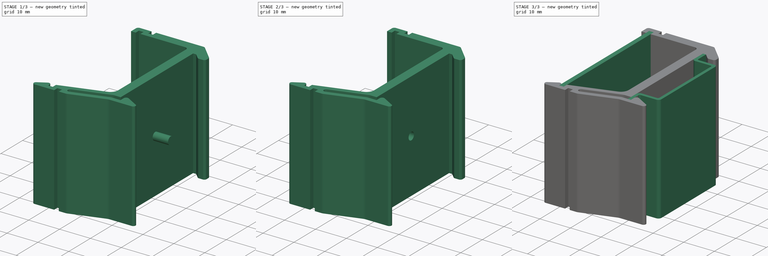
[diagram: build sequence overview — one tinted view per stage of 3, left to right]
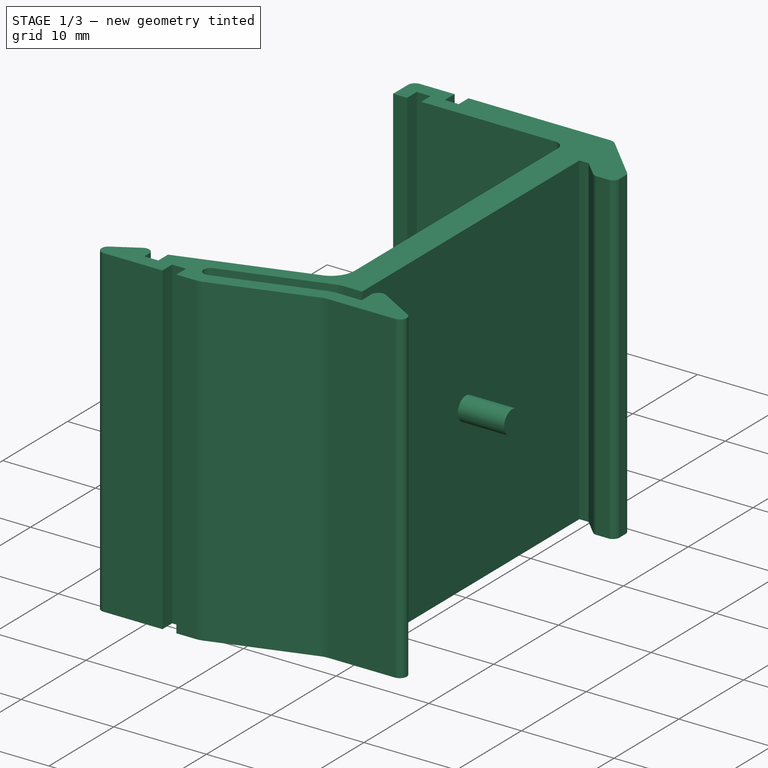
[diagram: stage 1 of 3 — iso view after this stage's code; geometry added in this stage tinted green]
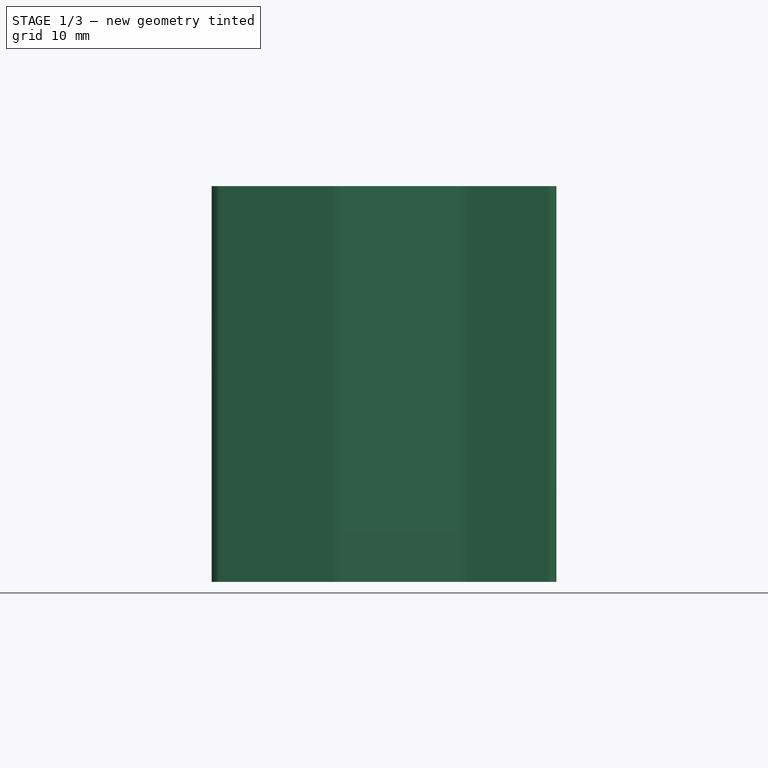
[diagram: stage 1 of 3 — front view after this stage's code; geometry added in this stage tinted green]
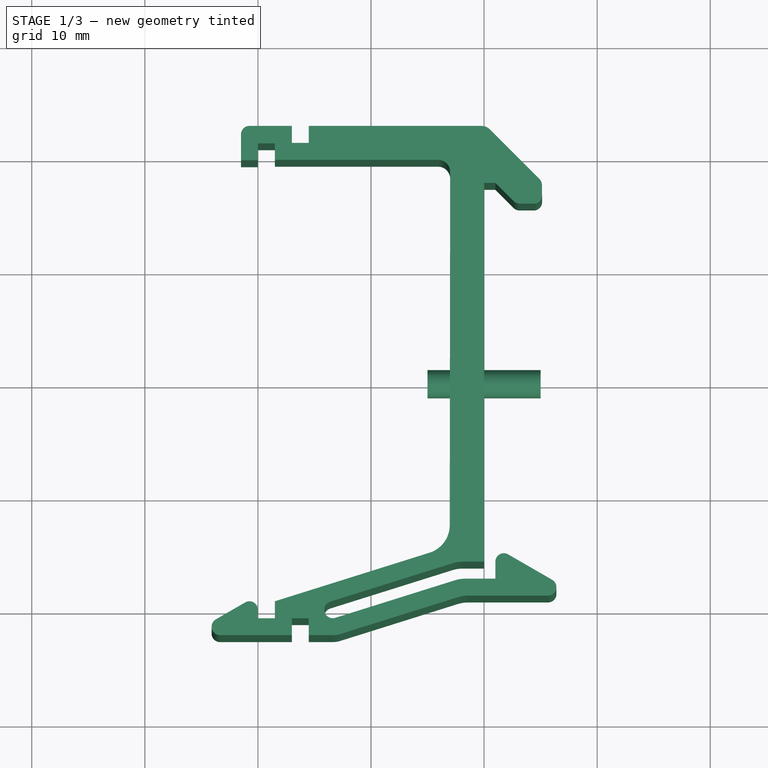
[diagram: stage 1 of 3 — top view after this stage's code; geometry added in this stage tinted green]
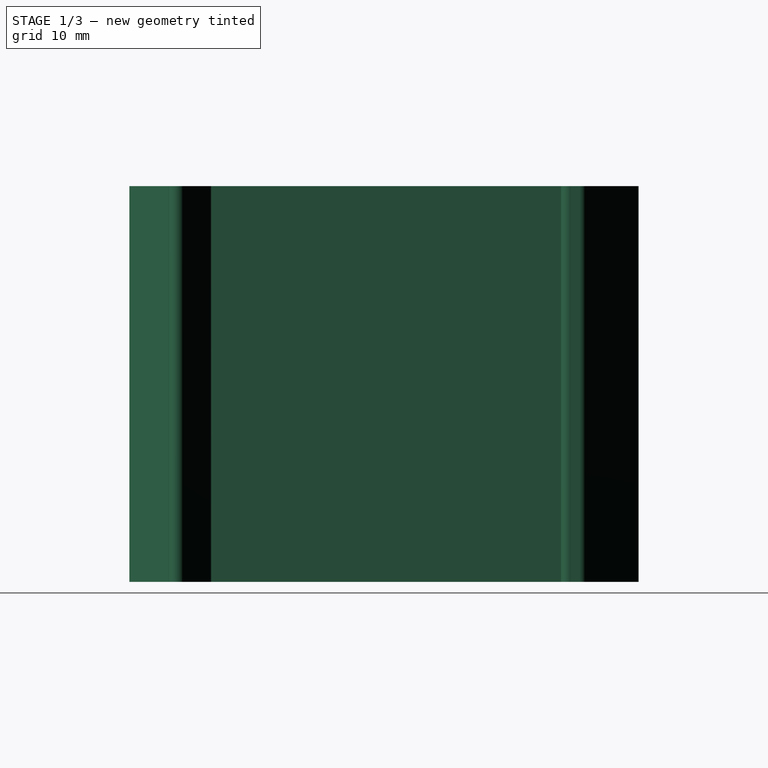
[diagram: stage 1 of 3 — right view after this stage's code; geometry added in this stage tinted green]
FCSTD DOCUMENT
Label: DIN_bracket_double
License: CC-BY 3.0
LicenseURL: http://creativecommons.org/licenses/by/3.0/
objects: Sketcher::SketchObject×2, PartDesign::Pad×2, Part::Box×1, Part::Cylinder×1, Part::Cut×1
note: 9 computed .brp shape members not serialized (recipe doc carries the construction recipe); baked Part::Feature solids carry a one-line shape summary decoded from their .brp

FEATURE [PartDesign::Pad] Pad  label="DIN bracket solid"
  Length = 35
  Length2 = 100
  Placement = pos=(-3,0,0) rot=(0,0,1;0rad)
  Sketch = -> Sketch
  Type = 0
FEATURE [Part::Cylinder] Cylinder  label="bracket hole"
  Angle = 360
  Height = 10
  Placement = pos=(5,0,17.5) rot=(0,-1,0;1.5708rad)
  Radius = 1.25
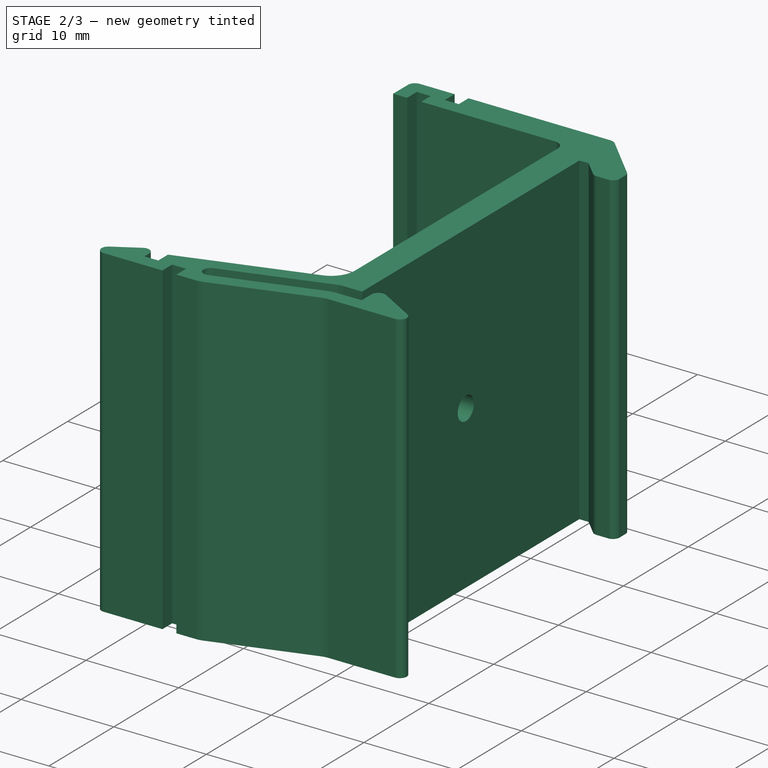
[diagram: stage 2 of 3 — iso view after this stage's code; geometry added in this stage tinted green]
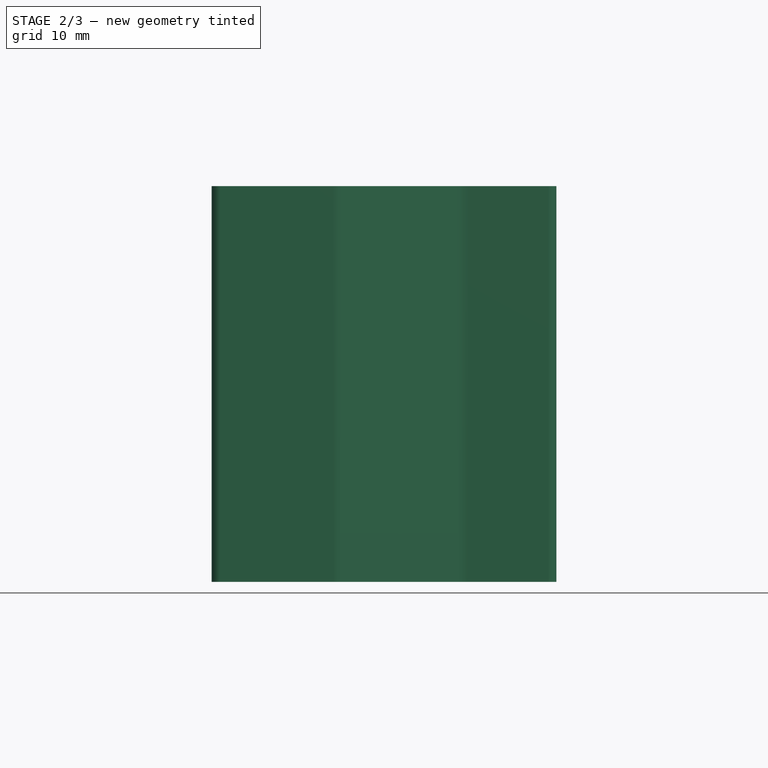
[diagram: stage 2 of 3 — front view after this stage's code; geometry added in this stage tinted green]
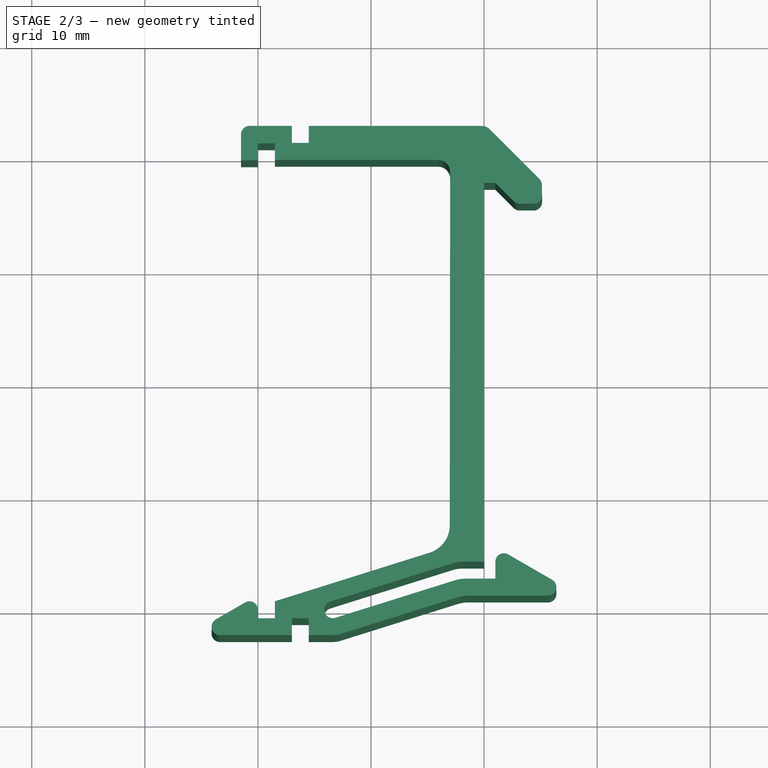
[diagram: stage 2 of 3 — top view after this stage's code; geometry added in this stage tinted green]
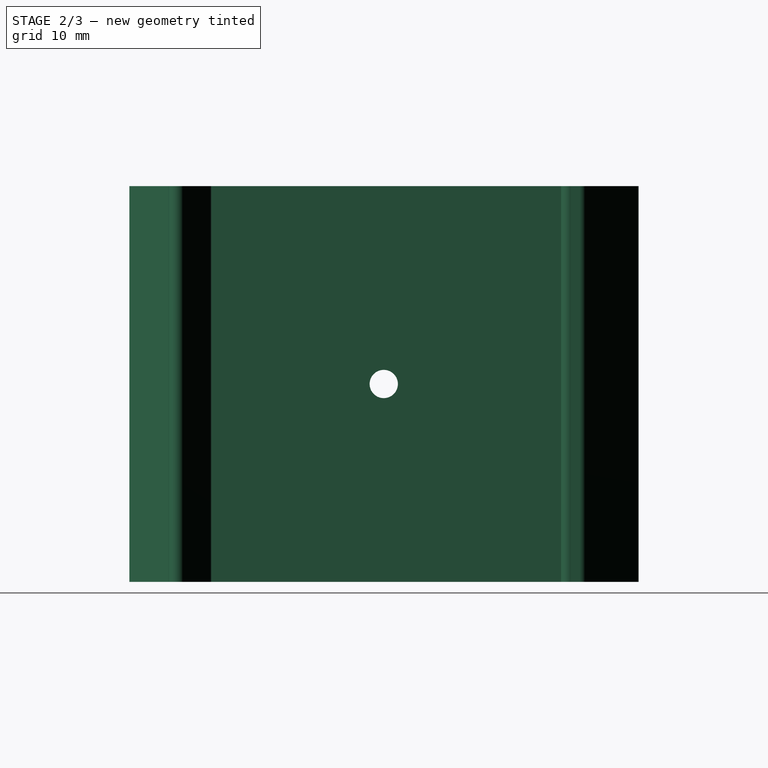
[diagram: stage 2 of 3 — right view after this stage's code; geometry added in this stage tinted green]
FEATURE [Part::Cut] Cut  label="DIN bracket"
  Base = -> Pad
  Tool = -> Cylinder
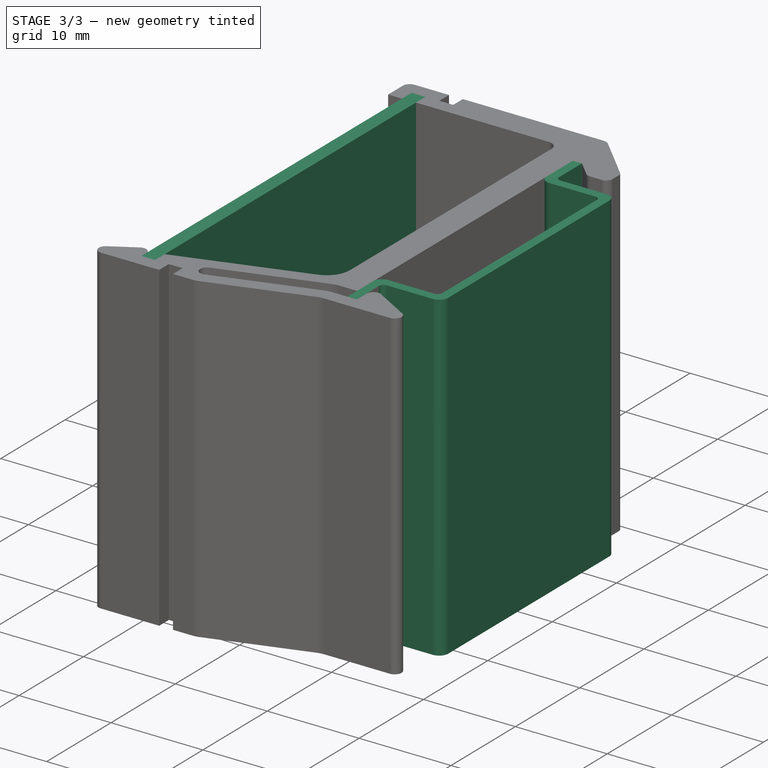
[diagram: stage 3 of 3 — iso view after this stage's code; geometry added in this stage tinted green]
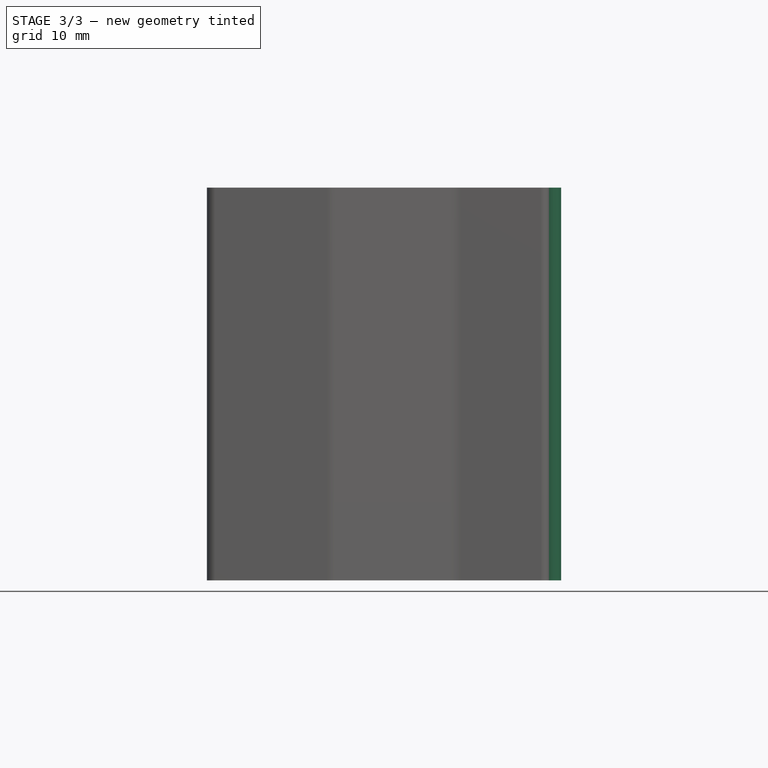
[diagram: stage 3 of 3 — front view after this stage's code; geometry added in this stage tinted green]
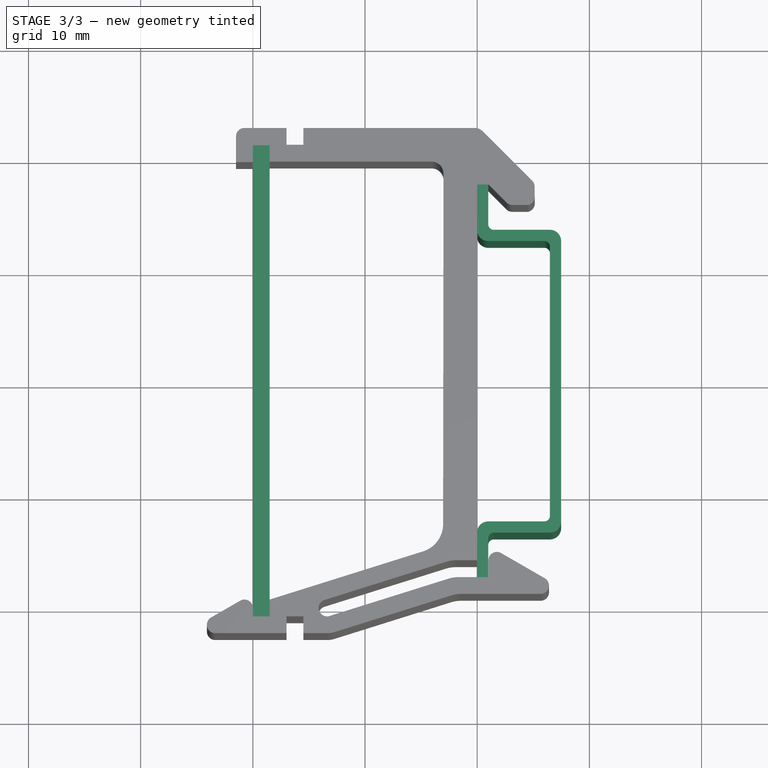
[diagram: stage 3 of 3 — top view after this stage's code; geometry added in this stage tinted green]
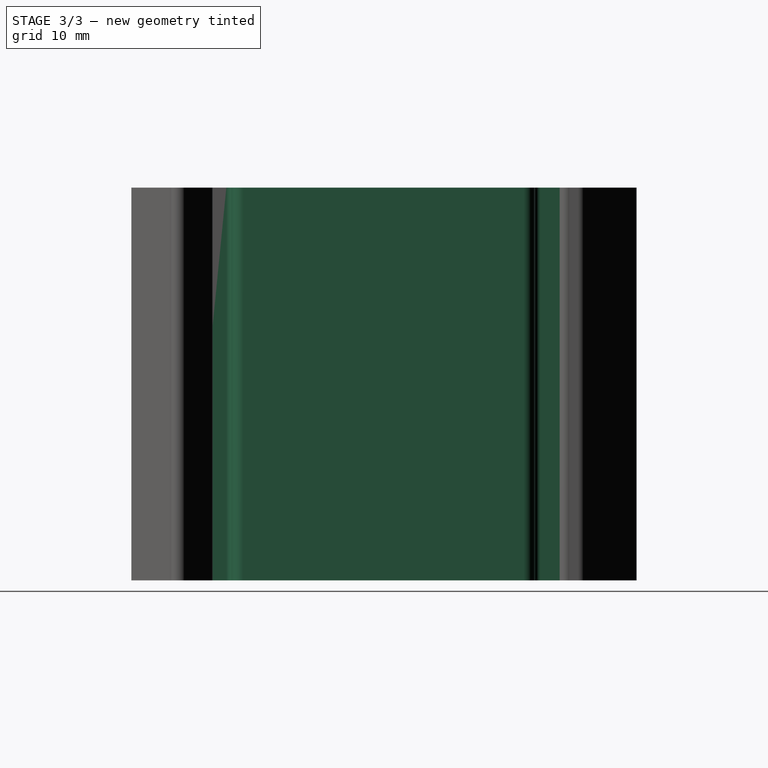
[diagram: stage 3 of 3 — right view after this stage's code; geometry added in this stage tinted green]
FEATURE [Sketcher::SketchObject] Sketch
  Placement = pos=(-3,0,0) rot=(0,0,1;0rad)
  sketch-geometry (52):
    g0: LineSegment StartX=2.77199 StartY=22.5417 StartZ=0 EndX=-12.5 EndY=22.5417 EndZ=0
    g1: LineSegment StartX=-18.5 StartY=21.7917 StartZ=0 EndX=-18.5 EndY=19.5 EndZ=0
    g2: LineSegment StartX=-18.5 StartY=19.5 StartZ=0 EndX=-17 EndY=19.5 EndZ=0
    g3: LineSegment StartX=-17 StartY=19.5 StartZ=0 EndX=-17 EndY=21 EndZ=0
    g4: LineSegment StartX=-17 StartY=21 StartZ=0 EndX=-15.5 EndY=21 EndZ=0
    g5: LineSegment StartX=-15.5 StartY=21 StartZ=0 EndX=-15.5 EndY=19.5417 EndZ=0
    g6: LineSegment StartX=-15.5 StartY=19.5417 StartZ=0 EndX=-1.04706 EndY=19.5417 EndZ=0
    g7: ArcOfCircle CenterX=-1.06574 CenterY=18.4761 CenterZ=0 NormalX=0 NormalY=0 NormalZ=1 Radius=1.06575 StartAngle=6.28199 EndAngle=7.83645
    g8: LineSegment StartX=0 StartY=18.4748 StartZ=0 EndX=-0.0372978 EndY=-12.7672 EndZ=0
    g9: LineSegment StartX=-15.5 StartY=-19.5 StartZ=0 EndX=-15.5 EndY=-21 EndZ=0
    g10: LineSegment StartX=-15.5 StartY=-21 StartZ=0 EndX=-17 EndY=-21 EndZ=0
    g11: LineSegment StartX=-17 StartY=-21 StartZ=0 EndX=-17 EndY=-20.25 EndZ=0
    g12: ArcOfCircle CenterX=-17.75 CenterY=-20.25 CenterZ=0 NormalX=0 NormalY=0 NormalZ=1 Radius=0.75 StartAngle=-3.81e-10 EndAngle=2.0944
    g13: LineSegment StartX=-18.125 StartY=-19.6005 StartZ=0 EndX=-20.7231 EndY=-21.1005 EndZ=0
    g14: ArcOfCircle CenterX=-20.3481 CenterY=-21.75 CenterZ=0 NormalX=0 NormalY=0 NormalZ=1 Radius=0.75 StartAngle=2.0944 EndAngle=4.71239
    g15: LineSegment StartX=-20.3481 StartY=-22.5 StartZ=0 EndX=-14 EndY=-22.5 EndZ=0
    g16: LineSegment StartX=1.57107 StartY=-19 StartZ=0 EndX=8.6469 EndY=-19 EndZ=0
    g17: ArcOfCircle CenterX=8.6469 CenterY=-18.25 CenterZ=0 NormalX=0 NormalY=0 NormalZ=1 Radius=0.75 StartAngle=4.71239 EndAngle=7.33038
    g18: LineSegment StartX=9.0219 StartY=-17.6005 StartZ=0 EndX=5.12479 EndY=-15.3505 EndZ=0
    g19: ArcOfCircle CenterX=4.74979 CenterY=-16 CenterZ=0 NormalX=0 NormalY=0 NormalZ=1 Radius=0.75 StartAngle=1.0472 EndAngle=3.14159
    g20: LineSegment StartX=3.99979 StartY=-17.5 StartZ=0 EndX=1.34107 EndY=-17.5 EndZ=0
    g21: LineSegment StartX=1.11107 StartY=-16 StartZ=0 EndX=2.99979 EndY=-16 EndZ=0
    g22: LineSegment StartX=2.99979 StartY=-16 StartZ=0 EndX=2.99979 EndY=17.5 EndZ=0
    g23: LineSegment StartX=2.99979 StartY=17.5 StartZ=0 EndX=3.99979 EndY=17.5 EndZ=0
    g24: LineSegment StartX=3.99979 StartY=17.5 StartZ=0 EndX=5.55694 EndY=15.9428 EndZ=0
    g25: ArcOfCircle CenterX=6.13336 CenterY=16.4227 CenterZ=0 NormalX=0 NormalY=0 NormalZ=1 Radius=0.75 StartAngle=3.83579 EndAngle=4.71239
    g26: LineSegment StartX=6.13336 StartY=15.6727 StartZ=0 EndX=7.5134 EndY=15.6727 EndZ=0
    g27: ArcOfCircle CenterX=7.37784 CenterY=16.4103 CenterZ=0 NormalX=0 NormalY=0 NormalZ=1 Radius=0.75 StartAngle=4.89412 EndAngle=6.45098
    g28: LineSegment StartX=8.11731 StartY=16.5356 StartZ=0 EndX=8.11731 EndY=17.3145 EndZ=0
    g29: LineSegment StartX=3.99979 StartY=-16 StartZ=0 EndX=3.99979 EndY=-17.5 EndZ=0
    g30: LineSegment StartX=-12.5 StartY=22.5417 StartZ=0 EndX=-12.5 EndY=21.0417 EndZ=0
    g31: LineSegment StartX=-12.5 StartY=21.0417 StartZ=0 EndX=-14 EndY=21.0417 EndZ=0
    g32: LineSegment StartX=-14 StartY=21.0417 StartZ=0 EndX=-14 EndY=22.5417 EndZ=0
    g33: LineSegment StartX=-14 StartY=22.5417 StartZ=0 EndX=-17.75 EndY=22.5417 EndZ=0
    g34: LineSegment StartX=3.50396 StartY=22.2385 StartZ=0 EndX=7.89764 EndY=17.8448 EndZ=0
    g35: ArcOfCircle CenterX=7.36731 CenterY=17.3145 CenterZ=0 NormalX=0 NormalY=0 NormalZ=1 Radius=0.75 StartAngle=0 EndAngle=0.785398
    g36: ArcOfCircle CenterX=2.77199 CenterY=21.5065 CenterZ=0 NormalX=0 NormalY=0 NormalZ=1 Radius=1.03517 StartAngle=0.785398 EndAngle=1.5708
    g37: ArcOfCircle CenterX=-17.75 CenterY=21.7917 CenterZ=0 NormalX=0 NormalY=0 NormalZ=1 Radius=0.75 StartAngle=1.5708 EndAngle=3.14159
    g38: LineSegment StartX=0.672204 StartY=-19.1378 StartZ=0 EndX=-9.70453 EndY=-22.3966 EndZ=0
    g39: LineSegment StartX=-15.5 StartY=-19.5 StartZ=0 EndX=-1.8307 EndY=-15.2072 EndZ=0
    g40: LineSegment StartX=0.212206 StartY=-16.1378 StartZ=0 EndX=-10.6034 EndY=-19.5345 EndZ=0
    g41: LineSegment StartX=-10.154 StartY=-20.9655 StartZ=0 EndX=0.442205 EndY=-17.6378 EndZ=0
    g42: ArcOfCircle CenterX=-10.3787 CenterY=-20.25 CenterZ=0 NormalX=0 NormalY=0 NormalZ=1 Radius=0.75 StartAngle=1.8751 EndAngle=5.01668
    g43: ArcOfCircle CenterX=-10.3787 CenterY=-20.25 CenterZ=0 NormalX=0 NormalY=0 NormalZ=1 Radius=2.25 StartAngle=4.71239 EndAngle=5.01668
    g44: LineSegment StartX=-14 StartY=-22.5 StartZ=0 EndX=-14 EndY=-21 EndZ=0
    g45: LineSegment StartX=-14 StartY=-21 StartZ=0 EndX=-12.5 EndY=-21 EndZ=0
    g46: LineSegment StartX=-12.5 StartY=-21 StartZ=0 EndX=-12.5 EndY=-22.5 EndZ=0
    g47: LineSegment StartX=-12.5 StartY=-22.5 StartZ=0 EndX=-10.3787 EndY=-22.5 EndZ=0
    g48: ArcOfCircle CenterX=-2.59792 CenterY=-12.7642 CenterZ=0 NormalX=0 NormalY=0 NormalZ=1 Radius=2.56062 StartAngle=5.01668 EndAngle=6.28199
    g49: ArcOfCircle CenterX=1.11107 CenterY=-19 CenterZ=0 NormalX=0 NormalY=0 NormalZ=1 Radius=3 StartAngle=1.5708 EndAngle=1.87509
    g50: ArcOfCircle CenterX=1.34107 CenterY=-20.5 CenterZ=0 NormalX=0 NormalY=0 NormalZ=1 Radius=3 StartAngle=1.5708 EndAngle=1.87509
    g51: ArcOfCircle CenterX=1.57107 CenterY=-22 CenterZ=0 NormalX=0 NormalY=0 NormalZ=1 Radius=3 StartAngle=1.5708 EndAngle=1.87509
  constraints (141):
    c: Vertical(g11)
    c: Distance(g10) = 1.5
    c: Coincident(g12,g11)
    c: Coincident(g11,g10)
    c: Coincident(g10,g9)
    c: Vertical(g9)
    c: Coincident(g14,g15)
    c: Horizontal(g15)
    c: Coincident(g13,g12)
    c: Tangent(g13,g12)
    c: Coincident(g21,g22)
    c: Vertical(g22)
    c: Parallel(g20,g21)
    c: Vertical(g29)
    c: Coincident(g19,g29)
    c: Coincident(g19,g18)
    c: Tangent(g19,g29)
    c: Tangent(g19,g18)
    c: Coincident(g29,g20)
    c: Coincident(g7,g8)
    c: Coincident(g23,g22)
    c: Coincident(g18,g17)
    c: Coincident(g7,g6)
    c: DistanceY(g21,g20) = -1.5
    c: Distance(g20,g16) = 1.5
    c: Coincident(g16,g17)
    c: DistanceX(g9) = -15.5
    c: DistanceX(g4) = -15.5
    c: Coincident(g5,g4)
    c: Vertical(g5)
    c: DistanceX(g4) = 1.5
    c: Vertical(g3)
    c: Coincident(g2,g3)
    c: Horizontal(g4)
    c: Vertical(g1)
    c: Coincident(g1,g2)
    c: DistanceX(g2) = 1.5
    c: DistanceY(g3) = 1.5
    c: Horizontal(g2)
    c: Tangent(g7,g8)
    c: DistanceX(g7) = 0
    c: Distance(g23) = 1
    c: Horizontal(g23)
    c: Coincident(g24,g23)
    c: Tangent(g25,g26)
    c: Horizontal(g0)
    c: Horizontal(g6)
    c: Coincident(g30,g31)
    c: Coincident(g31,g32)
    c: Horizontal(g31)
    c: Vertical(g30)
    c: Vertical(g32)
    c: Coincident(g0,g30)
    c: Coincident(g33,g32)
    c: Tangent(g0,g33)
    c: Distance(g31) = 1.5
    c: DistanceY(g32) = 1.5
    c: DistanceX(g31,g4) = -1.5
    c: Distance(g10,g15) = 1.5
    c: Parallel(g10,g15)
    c: Angle(g18,g16) = 0.523599
    c: Radius(g17) = 0.75
    c: DistanceX(g21,g20) = 1
    c: Distance(g29) = 1.5
    c: Radius(g19) = 0.75
    c: Tangent(g12,g11)
    c: Distance(g6,g0) = 3
    c: Vertical(g28)
    c: Coincident(g27,g28)
    c: Coincident(g26,g27)
    c: Horizontal(g26)
    c: Tangent(g17,g16)
    c: Coincident(g25,g24)
    c: Coincident(g25,g26)
    c: Tangent(g18,g17)
    c: Angle(g0,g34) = 2.35619
    c: Distance(g23,g34) = 3
    c: Parallel(g24,g34)
    c: Tangent(g28,g35)
    c: Tangent(g34,g35)
    c: Tangent(g0,g36)
    c: Tangent(g34,g36)
    c: Tangent(g1,g37)
    c: Tangent(g33,g37)
    c: Radius(g37) = 0.75
    c: Coincident(g4,g3)
    c: DistanceY(g3,g10) = -42
    c: DistanceY(g4) = 21
    c: Radius(g27) = 0.75
    c: Equal(g35,g27)
    c: Equal(g27,g25)
    c: Coincident(g5,g6)
    c: Distance(g9) = 1.5
    c: Parallel(g39,g38)
    c: Coincident(g9,g39)
    c: DistanceY(g20,g23) = 35
    c: Distance(g40,g39) = 1.5
    c: Distance(g41,g40) = 1.5
    c: Coincident(g42,g41)
    c: Tangent(g42,g41)
    c: Coincident(g42,g40)
    c: Tangent(g42,g40)
    c: Tangent(g47,g43)
    c: Tangent(g38,g43)
    c: Coincident(g43,g42)
    c: Parallel(g40,g41)
    c: Parallel(g20,g16)
    c: Horizontal(g16)
    c: DistanceY(g20) = -17.5
    c: Coincident(g14,g13)
    c: Tangent(g14,g13)
    c: Tangent(g14,g15)
    c: Angle(g15,g13) = 0.523599
    c: DistanceY(g11) = 0.75
    c: Radius(g12) = 0.75
    c: Radius(g14) = 0.75
    c: Coincident(g45,g46)
    c: DistanceX(g45) = 1.5
    c: Vertical(g46)
    c: Vertical(g44)
    c: Coincident(g44,g45)
    c: Coincident(g15,g44)
    c: Coincident(g47,g46)
    c: Tangent(g15,g47)
    c: DistanceY(g44) = 1.5
    c: Equal(g46,g44)
    c: DistanceX(g15,g9) = -1.5
    c: Distance(g38,g41) = 1.5
    c: Parallel(g39,g40)
    c: Tangent(g8,g48)
    c: Tangent(g39,g48)
    c: Distance(g42,g45) = 2.25
    c: Tangent(g21,g49)
    c: Tangent(g40,g49)
    c: Tangent(g20,g50)
    c: Tangent(g41,g50)
    c: Tangent(g16,g51)
    c: Tangent(g38,g51)
    c: Radius(g49) = 3
    c: Radius(g50) = 3
    c: Radius(g51) = 3
FEATURE [Sketcher::SketchObject] Sketch001
  Placement = pos=(0,17.5,0) rot=(0,0,1;0rad)
  sketch-geometry (20):
    g0: LineSegment StartX=0 StartY=0 StartZ=0 EndX=0.981065 EndY=0 EndZ=0
    g1: LineSegment StartX=0.981065 StartY=0 StartZ=0 EndX=0.981065 EndY=-3.53545 EndZ=0
    g2: ArcOfCircle CenterX=1.48107 CenterY=-3.53545 CenterZ=0 NormalX=0 NormalY=0 NormalZ=1 Radius=0.5 StartAngle=3.14159 EndAngle=4.71239
    g3: LineSegment StartX=1.48107 StartY=-4.03545 StartZ=0 EndX=6.48107 EndY=-4.03545 EndZ=0
    g4: ArcOfCircle CenterX=6.48107 CenterY=-5.03545 CenterZ=0 NormalX=0 NormalY=0 NormalZ=1 Radius=1 StartAngle=0 EndAngle=1.5708
    g5: LineSegment StartX=7.48107 StartY=-5.03545 StartZ=0 EndX=7.48107 EndY=-30.0354 EndZ=0
    g6: ArcOfCircle CenterX=6.48107 CenterY=-30.0354 CenterZ=0 NormalX=0 NormalY=0 NormalZ=1 Radius=1 StartAngle=4.71239 EndAngle=6.28319
    g7: LineSegment StartX=6.48107 StartY=-31.0354 StartZ=0 EndX=1.48107 EndY=-31.0354 EndZ=0
    g8: ArcOfCircle CenterX=1.48107 CenterY=-31.5354 CenterZ=0 NormalX=0 NormalY=0 NormalZ=1 Radius=0.5 StartAngle=1.5708 EndAngle=3.14159
    g9: LineSegment StartX=0.981065 StartY=-31.5354 StartZ=0 EndX=0.981065 EndY=-35 EndZ=0
    g10: LineSegment StartX=0.981065 StartY=-35 StartZ=0 EndX=-0.018935 EndY=-35 EndZ=0
    g11: LineSegment StartX=-0.018935 StartY=-35 StartZ=0 EndX=-0.018935 EndY=-31.0354 EndZ=0
    g12: ArcOfCircle CenterX=0.981065 CenterY=-31.0354 CenterZ=0 NormalX=0 NormalY=0 NormalZ=1 Radius=1 StartAngle=1.5708 EndAngle=3.14159
    g13: LineSegment StartX=0.981065 StartY=-30.0354 StartZ=0 EndX=5.98107 EndY=-30.0354 EndZ=0
    g14: ArcOfCircle CenterX=5.98107 CenterY=-29.5354 CenterZ=0 NormalX=0 NormalY=0 NormalZ=1 Radius=0.5 StartAngle=4.71239 EndAngle=6.28319
    g15: LineSegment StartX=6.48107 StartY=-29.5354 StartZ=0 EndX=6.48107 EndY=-5.53545 EndZ=0
    g16: ArcOfCircle CenterX=5.98107 CenterY=-5.53545 CenterZ=0 NormalX=0 NormalY=0 NormalZ=1 Radius=0.5 StartAngle=0 EndAngle=1.5708
    g17: LineSegment StartX=5.98107 StartY=-5.03545 StartZ=0 EndX=0.981065 EndY=-5.03545 EndZ=0
    g18: ArcOfCircle CenterX=0.981065 CenterY=-4.03545 CenterZ=0 NormalX=0 NormalY=0 NormalZ=1 Radius=1 StartAngle=3.14159 EndAngle=4.71239
    g19: LineSegment StartX=-0.018935 StartY=-4.03545 StartZ=0 EndX=0 EndY=0 EndZ=0
  constraints (9):
    c: DistanceY(g-1,g10) = -35
    c: DistanceX(g0) = 0
    c: DistanceY(g0) = 0
    c: Horizontal(g0)
    c: Coincident(g19,g-1)
    c: Coincident(g1,g0)
    c: Horizontal(g10)
    c: Coincident(g9,g10)
    c: Coincident(g11,g10)
FEATURE [PartDesign::Pad] Pad001  label="DIN rail"
  Length = 35
  Length2 = 100
  Placement = pos=(0,17.5,0) rot=(0,0,1;0rad)
  Sketch = -> Sketch001
  Type = 0
FEATURE [Part::Box] Box  label="PCB"
  Height = 35
  Length = 1.5
  Placement = pos=(-20,-21,0) rot=(0,0,1;0rad)
  Width = 42
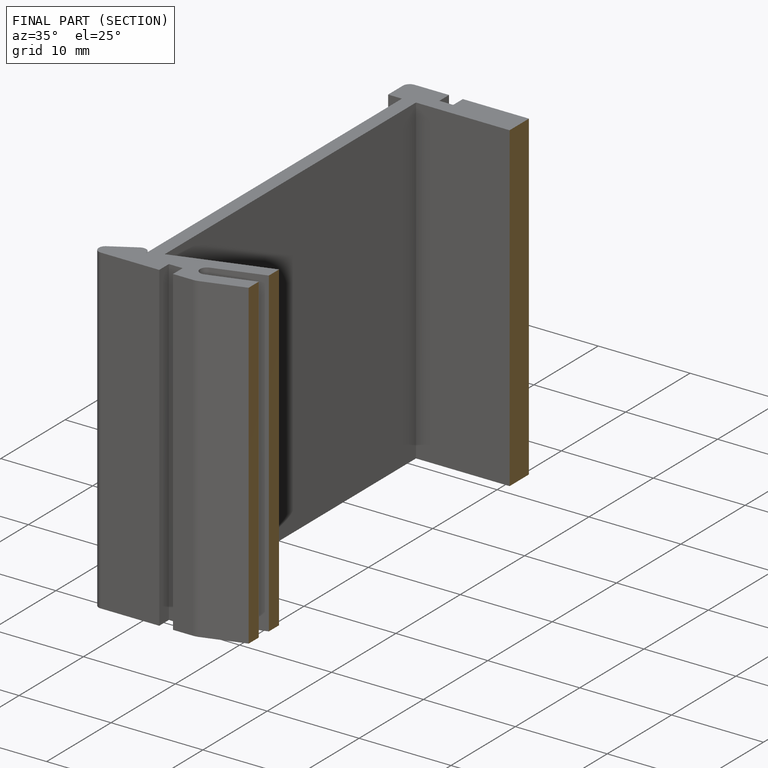
[diagram: finished part — half-section view (interior)]
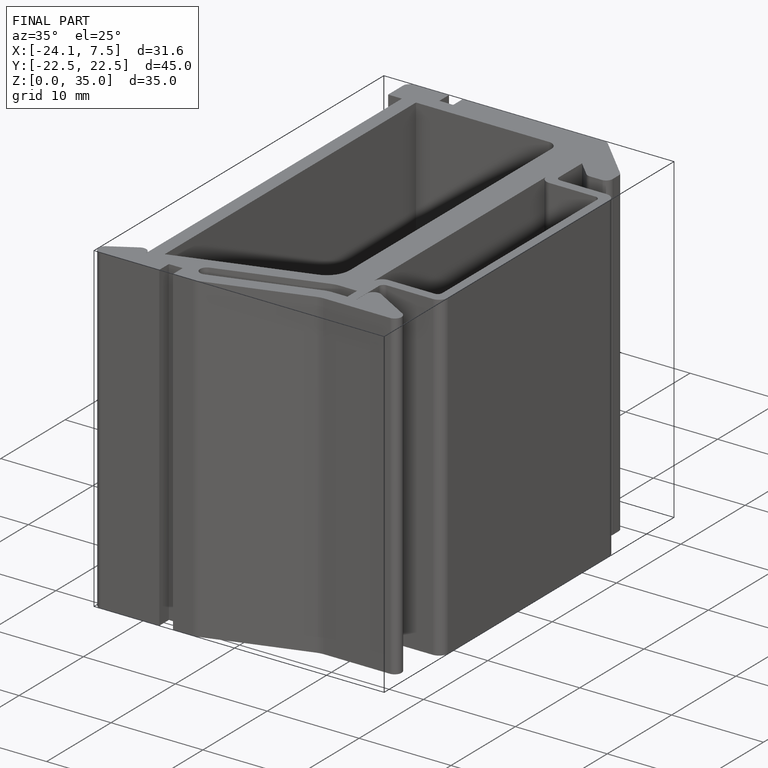
[diagram: finished part — iso view with bounding-box wireframe]
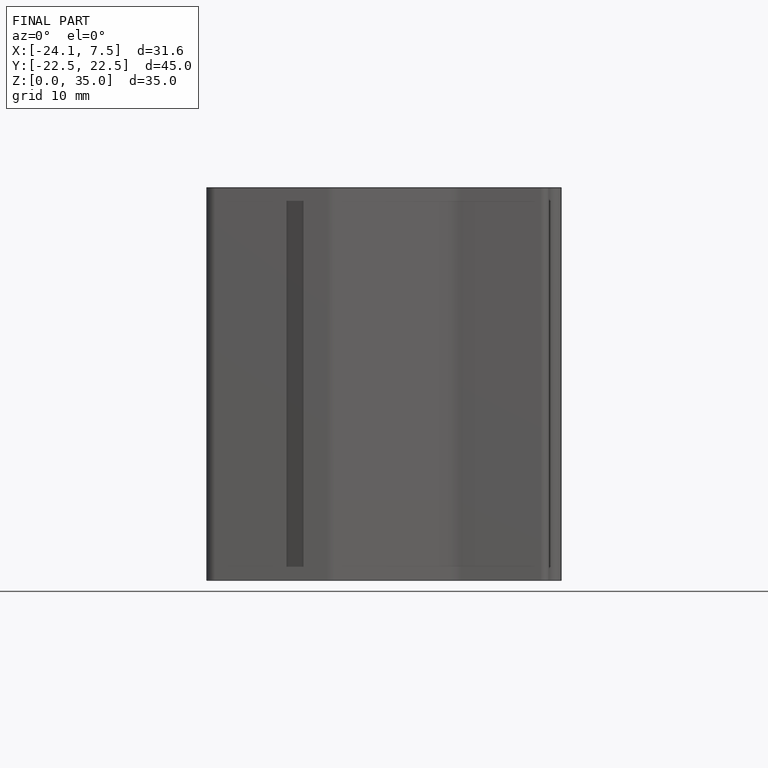
[diagram: finished part — front view with bounding-box wireframe]
